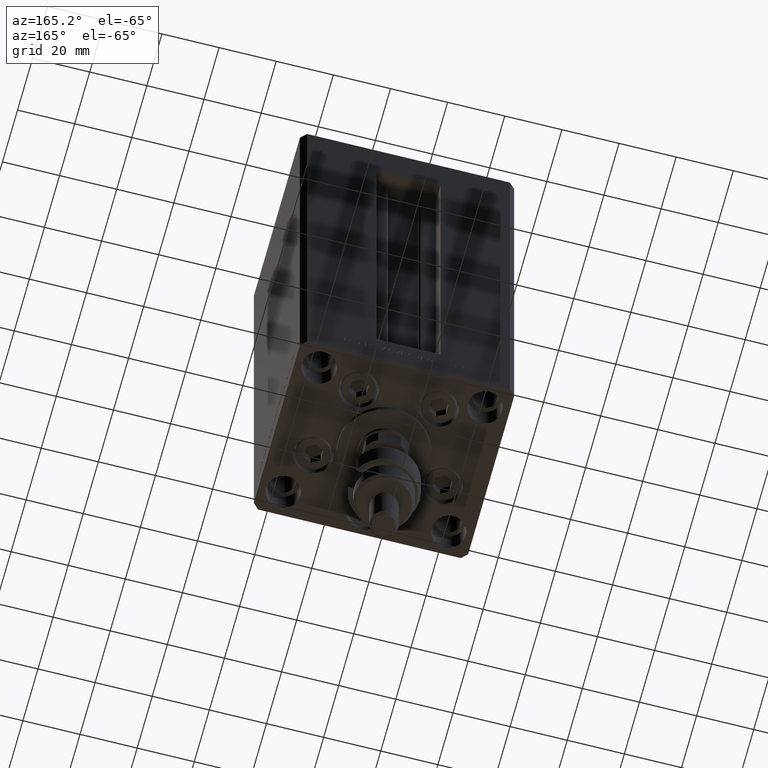
[diagram: clean part render]
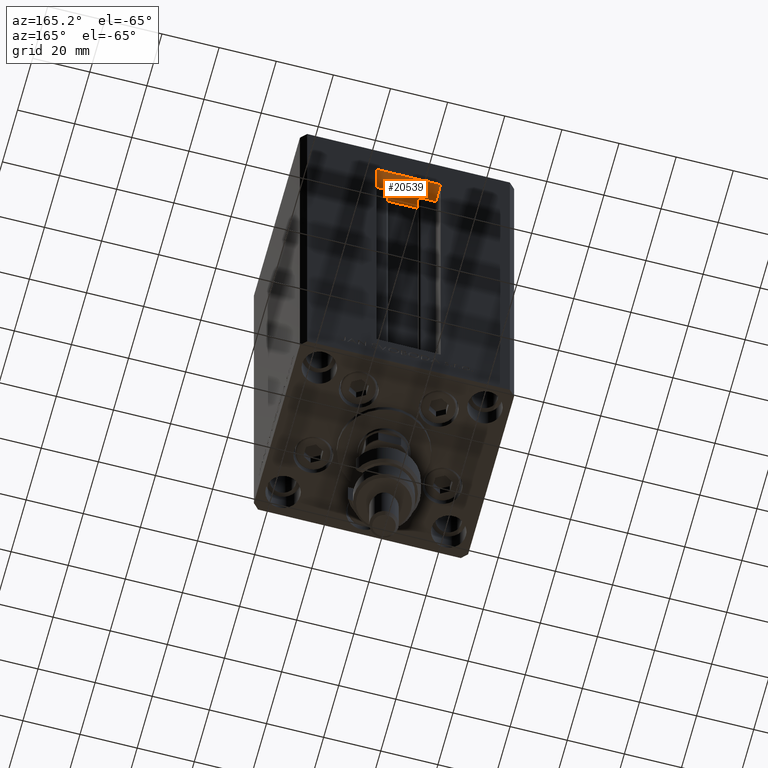
[diagram: same view with one face highlighted and labeled with its STEP entity id]
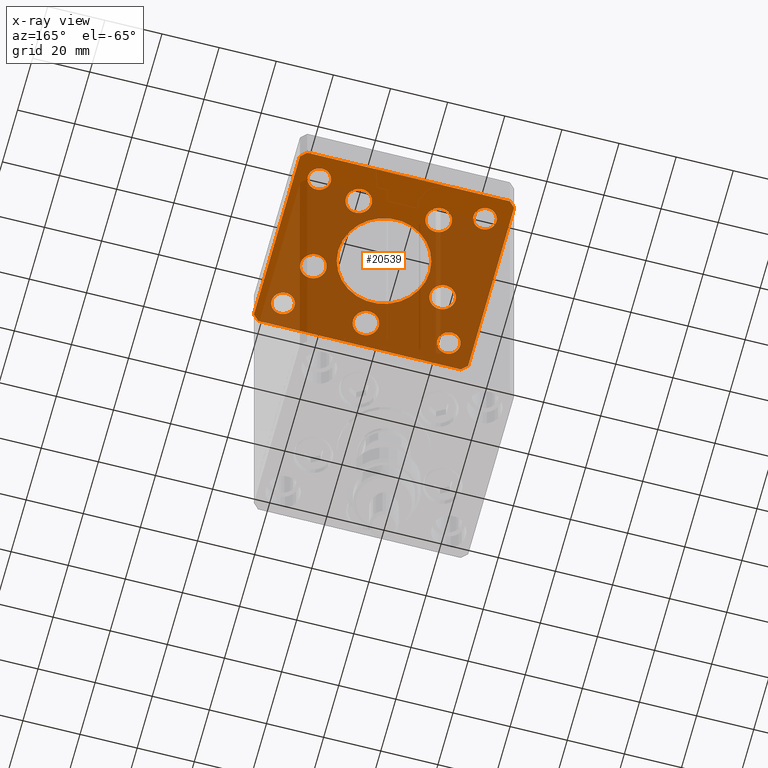
[diagram: x-ray of the same camera — body ghosted, the highlighted face saturated]
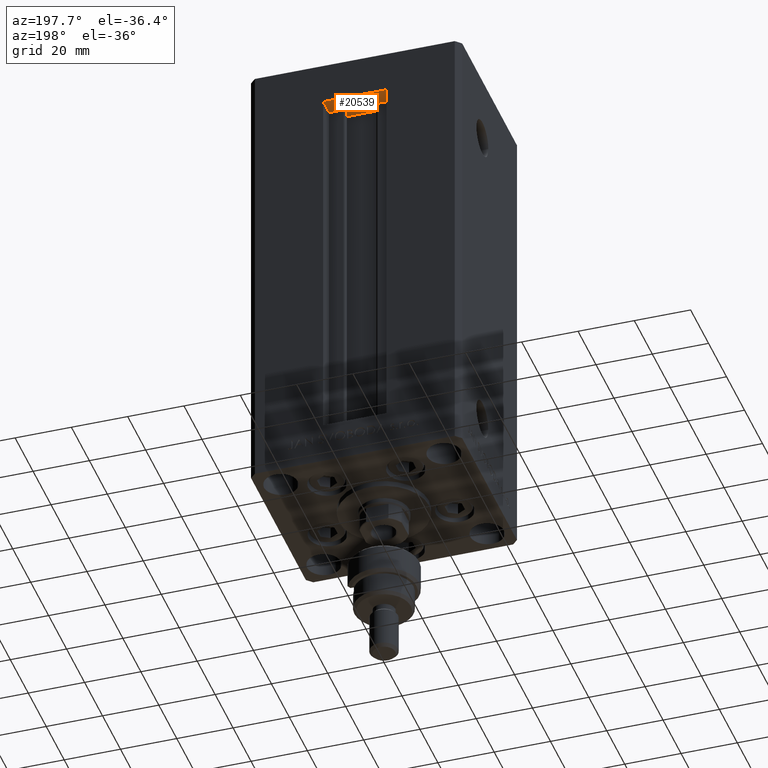
[diagram: same view with one face highlighted and labeled with its STEP entity id]
A machine part, auxiliary view. The second image highlights one B-rep face of the part: STEP entity #20539.
The next image is the same camera in x-ray: the body ghosted, the highlighted face saturated — about 75% of this face is hidden behind the body in this view.
A second angle (auxiliary view) of the same face is appended — the face is thin or edge-on in the first view.
In plain terms, the highlighted planar face has unit normal (0, 0, 1).
Its self-contained STEP definition (entity closure, byte-faithful):
#239 = EDGE_CURVE ( 'NONE', #32124, #35658, #41119, .T. ) ;
#413 = ORIENTED_EDGE ( 'NONE', *, *, #49595, .F. ) ;
#549 = VERTEX_POINT ( 'NONE', #11236 ) ;
#636 = EDGE_CURVE ( 'NONE', #27348, #44223, #35998, .T. ) ;
#1181 = DIRECTION ( 'NONE',  ( 0.000000000000000000, -0.000000000000000000, -1.000000000000000000 ) ) ;
#1193 = CARTESIAN_POINT ( 'NONE',  ( -29.00000000000001066, -23.99999999999999289, -15.00000000000000000 ) ) ;
#1346 = AXIS2_PLACEMENT_3D ( 'NONE', #16581, #32256, #29162 ) ;
#1719 = CIRCLE ( 'NONE', #13233, 4.500000000000005329 ) ;
#2108 = DIRECTION ( 'NONE',  ( 0.000000000000000000, -0.000000000000000000, -1.000000000000000000 ) ) ;
#2278 = CARTESIAN_POINT ( 'NONE',  ( -35.49999999999998579, -32.50000000000001421, -15.00000000000000000 ) ) ;
#2374 = VERTEX_POINT ( 'NONE', #20981 ) ;
#2466 = AXIS2_PLACEMENT_3D ( 'NONE', #42270, #46374, #26865 ) ;
#2703 = DIRECTION ( 'NONE',  ( 0.000000000000000000, -0.000000000000000000, -1.000000000000000000 ) ) ;
#2725 = VERTEX_POINT ( 'NONE', #4478 ) ;
#2871 = DIRECTION ( 'NONE',  ( -0.000000000000000000, 0.000000000000000000, 1.000000000000000000 ) ) ;
#3162 = VERTEX_POINT ( 'NONE', #3533 ) ;
#3432 = AXIS2_PLACEMENT_3D ( 'NONE', #33561, #13771, #9913 ) ;
#3533 = CARTESIAN_POINT ( 'NONE',  ( -33.00000000000000711, -23.99999999999999289, -15.00000000000000000 ) ) ;
#3539 = ORIENTED_EDGE ( 'NONE', *, *, #29998, .F. ) ;
#4306 = CARTESIAN_POINT ( 'NONE',  ( 16.00000000000000000, 0.000000000000000000, -15.00000000000000000 ) ) ;
#4478 = CARTESIAN_POINT ( 'NONE',  ( -18.49106857963322526, 19.49999999999999645, -15.00000000000000000 ) ) ;
#4487 = VECTOR ( 'NONE', #26949, 999.9999999999998863 ) ;
#4709 = VERTEX_POINT ( 'NONE', #49944 ) ;
#5706 = DIRECTION ( 'NONE',  ( 1.000000000000000000, 0.000000000000000000, 0.000000000000000000 ) ) ;
#5871 = AXIS2_PLACEMENT_3D ( 'NONE', #25638, #44891, #29480 ) ;
#5949 = CARTESIAN_POINT ( 'NONE',  ( -16.00000000000000000, 1.959434878635764737E-15, -15.00000000000000000 ) ) ;
#6100 = VECTOR ( 'NONE', #25543, 1000.000000000000000 ) ;
#6103 = CARTESIAN_POINT ( 'NONE',  ( 18.49106857963322881, 19.50000000000000000, -15.00000000000000000 ) ) ;
#6219 = VERTEX_POINT ( 'NONE', #33811 ) ;
#6577 = DIRECTION ( 'NONE',  ( 0.000000000000000000, -0.000000000000000000, -1.000000000000000000 ) ) ;
#6731 = FACE_BOUND ( 'NONE', #8968, .T. ) ;
#6745 = CIRCLE ( 'NONE', #29764, 4.499999999999997335 ) ;
#6864 = DIRECTION ( 'NONE',  ( 0.000000000000000000, -0.000000000000000000, -1.000000000000000000 ) ) ;
#7143 = LINE ( 'NONE', #12022, #4487 ) ;
#7540 = CARTESIAN_POINT ( 'NONE',  ( 25.00000000000000711, 24.00000000000000711, -15.00000000000000000 ) ) ;
#7629 = DIRECTION ( 'NONE',  ( -1.000000000000000000, 0.000000000000000000, 0.000000000000000000 ) ) ;
#7656 = CARTESIAN_POINT ( 'NONE',  ( 27.12741699796952233, -8.000000000000000000, -15.00000000000000000 ) ) ;
#8174 = CARTESIAN_POINT ( 'NONE',  ( 0.000000000000000000, 0.000000000000000000, -15.00000000000000000 ) ) ;
#8239 = CIRCLE ( 'NONE', #2466, 4.000000000000003553 ) ;
#8267 = ORIENTED_EDGE ( 'NONE', *, *, #22601, .F. ) ;
#8351 = CIRCLE ( 'NONE', #5871, 4.500000000000001776 ) ;
#8956 = AXIS2_PLACEMENT_3D ( 'NONE', #49527, #6864, #11233 ) ;
#8968 = EDGE_LOOP ( 'NONE', ( #24227, #49152 ) ) ;
#8971 = VERTEX_POINT ( 'NONE', #42929 ) ;
#9136 = DIRECTION ( 'NONE',  ( 1.000000000000000000, 0.000000000000000000, 0.000000000000000000 ) ) ;
#9172 = CIRCLE ( 'NONE', #15763, 4.500000000000005329 ) ;
#9582 = CARTESIAN_POINT ( 'NONE',  ( 35.50000000000000711, -32.50000000000000711, -15.00000000000000000 ) ) ;
#9807 = CIRCLE ( 'NONE', #50030, 3.999999999999996447 ) ;
#9812 = ORIENTED_EDGE ( 'NONE', *, *, #15396, .F. ) ;
#9816 = DIRECTION ( 'NONE',  ( -1.000000000000000000, -1.954618001100629052E-16, 0.000000000000000000 ) ) ;
#9833 = AXIS2_PLACEMENT_3D ( 'NONE', #12501, #48442, #9136 ) ;
#9913 = DIRECTION ( 'NONE',  ( -1.000000000000000000, 0.000000000000000000, 0.000000000000000000 ) ) ;
#10322 = ORIENTED_EDGE ( 'NONE', *, *, #19202, .T. ) ;
#10709 = CIRCLE ( 'NONE', #9833, 4.000000000000003553 ) ;
#11233 = DIRECTION ( 'NONE',  ( 1.000000000000000000, 0.000000000000000000, 0.000000000000000000 ) ) ;
#11236 = CARTESIAN_POINT ( 'NONE',  ( -9.491068579633228808, 19.49999999999999645, -15.00000000000000000 ) ) ;
#11287 = DIRECTION ( 'NONE',  ( 0.000000000000000000, -0.000000000000000000, -1.000000000000000000 ) ) ;
#11294 = EDGE_CURVE ( 'NONE', #12788, #37465, #9172, .T. ) ;
#11532 = FACE_BOUND ( 'NONE', #43411, .T. ) ;
#11558 = EDGE_LOOP ( 'NONE', ( #17190, #46262 ) ) ;
#11830 = ORIENTED_EDGE ( 'NONE', *, *, #12151, .F. ) ;
#12022 = CARTESIAN_POINT ( 'NONE',  ( 37.49999999999992184, 30.50000000000001066, -15.00000000000000000 ) ) ;
#12039 = FACE_BOUND ( 'NONE', #26989, .T. ) ;
#12151 = EDGE_CURVE ( 'NONE', #2374, #32124, #44531, .T. ) ;
#12420 = CARTESIAN_POINT ( 'NONE',  ( -22.62741699796951877, -8.000000000000005329, -15.00000000000000000 ) ) ;
#12470 = CIRCLE ( 'NONE', #32965, 4.000000000000000000 ) ;
#12501 = CARTESIAN_POINT ( 'NONE',  ( 29.00000000000001066, 24.00000000000000711, -15.00000000000000000 ) ) ;
#12600 = ORIENTED_EDGE ( 'NONE', *, *, #11294, .F. ) ;
#12788 = VERTEX_POINT ( 'NONE', #6103 ) ;
#13233 = AXIS2_PLACEMENT_3D ( 'NONE', #47207, #1181, #39506 ) ;
#13290 = DIRECTION ( 'NONE',  ( -0.000000000000000000, -0.000000000000000000, -1.000000000000000000 ) ) ;
#13319 = EDGE_CURVE ( 'NONE', #39549, #50448, #15124, .T. ) ;
#13343 = EDGE_LOOP ( 'NONE', ( #19062, #10322 ) ) ;
#13580 = AXIS2_PLACEMENT_3D ( 'NONE', #22667, #34474, #42933 ) ;
#13771 = DIRECTION ( 'NONE',  ( -0.000000000000000000, -0.000000000000000000, -1.000000000000000000 ) ) ;
#13919 = EDGE_CURVE ( 'NONE', #37545, #3162, #9807, .T. ) ;
#14022 = CARTESIAN_POINT ( 'NONE',  ( 0.000000000000000000, 0.000000000000000000, -15.00000000000000000 ) ) ;
#14448 = FACE_BOUND ( 'NONE', #22689, .T. ) ;
#14700 = FACE_BOUND ( 'NONE', #41709, .T. ) ;
#14862 = VECTOR ( 'NONE', #27167, 1000.000000000000000 ) ;
#14903 = CARTESIAN_POINT ( 'NONE',  ( -37.49999999999998579, -30.50000000000001421, -15.00000000000000000 ) ) ;
#15124 = CIRCLE ( 'NONE', #21680, 4.500000000000001776 ) ;
#15130 = ORIENTED_EDGE ( 'NONE', *, *, #38378, .F. ) ;
#15396 = EDGE_CURVE ( 'NONE', #32939, #4709, #36734, .T. ) ;
#15566 = DIRECTION ( 'NONE',  ( 0.000000000000000000, 0.000000000000000000, 1.000000000000000000 ) ) ;
#15763 = AXIS2_PLACEMENT_3D ( 'NONE', #37836, #37572, #18047 ) ;
#15913 = EDGE_CURVE ( 'NONE', #35658, #16513, #23059, .T. ) ;
#15973 = EDGE_LOOP ( 'NONE', ( #12600, #413 ) ) ;
#16322 = CARTESIAN_POINT ( 'NONE',  ( -25.00000000000001066, -23.99999999999999289, -15.00000000000000000 ) ) ;
#16513 = VERTEX_POINT ( 'NONE', #14903 ) ;
#16581 = CARTESIAN_POINT ( 'NONE',  ( 22.62741699796951877, -8.000000000000000000, -15.00000000000000000 ) ) ;
#16619 = EDGE_LOOP ( 'NONE', ( #31928, #15130 ) ) ;
#17190 = ORIENTED_EDGE ( 'NONE', *, *, #47456, .T. ) ;
#17842 = CARTESIAN_POINT ( 'NONE',  ( 37.50000000000001421, -30.50000000000000711, -15.00000000000000000 ) ) ;
#17985 = CARTESIAN_POINT ( 'NONE',  ( -35.50000000000002842, 32.49999999999999289, -15.00000000000000000 ) ) ;
#18047 = DIRECTION ( 'NONE',  ( 1.000000000000000000, 0.000000000000000000, 0.000000000000000000 ) ) ;
#18501 = CARTESIAN_POINT ( 'NONE',  ( -13.99106857963322703, 19.49999999999999645, -15.00000000000000000 ) ) ;
#18839 = ORIENTED_EDGE ( 'NONE', *, *, #36266, .F. ) ;
#19062 = ORIENTED_EDGE ( 'NONE', *, *, #24132, .T. ) ;
#19130 = CARTESIAN_POINT ( 'NONE',  ( 25.00000000000000711, -23.99999999999999289, -15.00000000000000000 ) ) ;
#19202 = EDGE_CURVE ( 'NONE', #44111, #49252, #12470, .T. ) ;
#19360 = ORIENTED_EDGE ( 'NONE', *, *, #15913, .F. ) ;
#19503 = ORIENTED_EDGE ( 'NONE', *, *, #20421, .F. ) ;
#19621 = EDGE_CURVE ( 'NONE', #38721, #41611, #24003, .T. ) ;
#19678 = ORIENTED_EDGE ( 'NONE', *, *, #239, .F. ) ;
#19762 = FACE_BOUND ( 'NONE', #16619, .T. ) ;
#20421 = EDGE_CURVE ( 'NONE', #39394, #28072, #6745, .T. ) ;
#20539 = ADVANCED_FACE ( 'NONE', ( #23372, #14448, #11532, #14700, #47238, #6731, #30390, #27982, #43646, #12039, #19762 ), #39533, .F. ) ;
#20820 = VERTEX_POINT ( 'NONE', #43328 ) ;
#20981 = CARTESIAN_POINT ( 'NONE',  ( 35.49999999999992184, 32.50000000000000711, -15.00000000000000000 ) ) ;
#21085 = EDGE_LOOP ( 'NONE', ( #35661, #19360, #19678, #11830, #21816, #18839, #46162, #9812 ) ) ;
#21164 = LINE ( 'NONE', #9582, #6100 ) ;
#21254 = VECTOR ( 'NONE', #37519, 1000.000000000000000 ) ;
#21376 = CARTESIAN_POINT ( 'NONE',  ( -37.49999999999998579, -30.50000000000001421, -15.00000000000000000 ) ) ;
#21680 = AXIS2_PLACEMENT_3D ( 'NONE', #22114, #26744, #33944 ) ;
#21816 = ORIENTED_EDGE ( 'NONE', *, *, #30017, .F. ) ;
#21868 = CARTESIAN_POINT ( 'NONE',  ( -29.00000000000001066, 24.00000000000000711, -15.00000000000000000 ) ) ;
#21890 = AXIS2_PLACEMENT_3D ( 'NONE', #1193, #13290, #43880 ) ;
#22082 = VERTEX_POINT ( 'NONE', #28125 ) ;
#22114 = CARTESIAN_POINT ( 'NONE',  ( 2.939152317953647500E-15, -24.00000000000000000, -15.00000000000000000 ) ) ;
#22601 = EDGE_CURVE ( 'NONE', #50448, #39549, #8351, .T. ) ;
#22667 = CARTESIAN_POINT ( 'NONE',  ( 29.00000000000001066, -23.99999999999999289, -15.00000000000000000 ) ) ;
#22689 = EDGE_LOOP ( 'NONE', ( #19503, #3539 ) ) ;
#22791 = CARTESIAN_POINT ( 'NONE',  ( -13.99106857963322703, 19.49999999999999645, -15.00000000000000000 ) ) ;
#23043 = DIRECTION ( 'NONE',  ( 1.000000000000000000, 0.000000000000000000, 0.000000000000000000 ) ) ;
#23059 = LINE ( 'NONE', #26669, #14862 ) ;
#23198 = EDGE_CURVE ( 'NONE', #6219, #33425, #49401, .T. ) ;
#23372 = FACE_BOUND ( 'NONE', #34548, .T. ) ;
#24003 = CIRCLE ( 'NONE', #33005, 16.00000000000000000 ) ;
#24132 = EDGE_CURVE ( 'NONE', #49252, #44111, #34675, .T. ) ;
#24206 = VECTOR ( 'NONE', #26521, 1000.000000000000114 ) ;
#24227 = ORIENTED_EDGE ( 'NONE', *, *, #44120, .F. ) ;
#24349 = ORIENTED_EDGE ( 'NONE', *, *, #13319, .F. ) ;
#25060 = LINE ( 'NONE', #17842, #43148 ) ;
#25235 = LINE ( 'NONE', #21376, #24206 ) ;
#25543 = DIRECTION ( 'NONE',  ( 0.7071067811865487940, 0.7071067811865463515, 0.000000000000000000 ) ) ;
#25638 = CARTESIAN_POINT ( 'NONE',  ( 2.939152317953647500E-15, -24.00000000000000000, -15.00000000000000000 ) ) ;
#25654 = CARTESIAN_POINT ( 'NONE',  ( 18.12741699796951877, -8.000000000000000000, -15.00000000000000000 ) ) ;
#26131 = CARTESIAN_POINT ( 'NONE',  ( -29.00000000000001066, 24.00000000000000711, -15.00000000000000000 ) ) ;
#26521 = DIRECTION ( 'NONE',  ( 0.7071067811865474617, -0.7071067811865474617, 0.000000000000000000 ) ) ;
#26669 = CARTESIAN_POINT ( 'NONE',  ( -37.50000000000001421, 30.49999999999998579, -15.00000000000000000 ) ) ;
#26744 = DIRECTION ( 'NONE',  ( 0.000000000000000000, -0.000000000000000000, -1.000000000000000000 ) ) ;
#26865 = DIRECTION ( 'NONE',  ( 1.000000000000000000, 0.000000000000000000, 0.000000000000000000 ) ) ;
#26949 = DIRECTION ( 'NONE',  ( -0.7071067811865482389, 0.7071067811865469066, 0.000000000000000000 ) ) ;
#26989 = EDGE_LOOP ( 'NONE', ( #38691, #47111 ) ) ;
#27167 = DIRECTION ( 'NONE',  ( 4.550094363217855288E-16, -1.000000000000000000, 0.000000000000000000 ) ) ;
#27189 = CARTESIAN_POINT ( 'NONE',  ( -29.00000000000001066, -23.99999999999999289, -15.00000000000000000 ) ) ;
#27348 = VERTEX_POINT ( 'NONE', #7656 ) ;
#27982 = FACE_BOUND ( 'NONE', #13343, .T. ) ;
#28072 = VERTEX_POINT ( 'NONE', #43799 ) ;
#28125 = CARTESIAN_POINT ( 'NONE',  ( 37.50000000000001421, -30.50000000000000711, -15.00000000000000000 ) ) ;
#28232 = EDGE_CURVE ( 'NONE', #4709, #22082, #21164, .T. ) ;
#28310 = CIRCLE ( 'NONE', #40590, 4.499999999999997335 ) ;
#28556 = CARTESIAN_POINT ( 'NONE',  ( -18.12741699796952233, -8.000000000000005329, -15.00000000000000000 ) ) ;
#29162 = DIRECTION ( 'NONE',  ( 1.000000000000000000, 0.000000000000000000, 0.000000000000000000 ) ) ;
#29480 = DIRECTION ( 'NONE',  ( 1.000000000000000000, 0.000000000000000000, 0.000000000000000000 ) ) ;
#29555 = EDGE_CURVE ( 'NONE', #16513, #32939, #25235, .T. ) ;
#29764 = AXIS2_PLACEMENT_3D ( 'NONE', #12420, #39909, #40153 ) ;
#29819 = CARTESIAN_POINT ( 'NONE',  ( -35.49999999999998579, -32.50000000000001421, -15.00000000000000000 ) ) ;
#29998 = EDGE_CURVE ( 'NONE', #28072, #39394, #28310, .T. ) ;
#30017 = EDGE_CURVE ( 'NONE', #20820, #2374, #7143, .T. ) ;
#30390 = FACE_BOUND ( 'NONE', #11558, .T. ) ;
#30424 = VECTOR ( 'NONE', #49577, 1000.000000000000000 ) ;
#30504 = DIRECTION ( 'NONE',  ( 1.000000000000000000, 0.000000000000000000, 0.000000000000000000 ) ) ;
#30594 = VECTOR ( 'NONE', #9816, 1000.000000000000000 ) ;
#30817 = DIRECTION ( 'NONE',  ( 1.000000000000000000, 0.000000000000000000, 0.000000000000000000 ) ) ;
#30854 = CIRCLE ( 'NONE', #13580, 4.000000000000003553 ) ;
#31409 = AXIS2_PLACEMENT_3D ( 'NONE', #26131, #15566, #23043 ) ;
#31839 = EDGE_CURVE ( 'NONE', #33425, #6219, #30854, .T. ) ;
#31928 = ORIENTED_EDGE ( 'NONE', *, *, #13919, .F. ) ;
#32124 = VERTEX_POINT ( 'NONE', #33138 ) ;
#32256 = DIRECTION ( 'NONE',  ( 0.000000000000000000, -0.000000000000000000, -1.000000000000000000 ) ) ;
#32738 = AXIS2_PLACEMENT_3D ( 'NONE', #18501, #11287, #42140 ) ;
#32939 = VERTEX_POINT ( 'NONE', #2278 ) ;
#32965 = AXIS2_PLACEMENT_3D ( 'NONE', #21868, #38300, #34706 ) ;
#33005 = AXIS2_PLACEMENT_3D ( 'NONE', #14022, #2703, #48958 ) ;
#33138 = CARTESIAN_POINT ( 'NONE',  ( -35.50000000000002842, 32.49999999999999289, -15.00000000000000000 ) ) ;
#33425 = VERTEX_POINT ( 'NONE', #19130 ) ;
#33561 = CARTESIAN_POINT ( 'NONE',  ( 29.00000000000001066, -23.99999999999999289, -15.00000000000000000 ) ) ;
#33811 = CARTESIAN_POINT ( 'NONE',  ( 33.00000000000001421, -23.99999999999999289, -15.00000000000000000 ) ) ;
#33944 = DIRECTION ( 'NONE',  ( 1.000000000000000000, 0.000000000000000000, 0.000000000000000000 ) ) ;
#34402 = VERTEX_POINT ( 'NONE', #7540 ) ;
#34474 = DIRECTION ( 'NONE',  ( -0.000000000000000000, -0.000000000000000000, -1.000000000000000000 ) ) ;
#34548 = EDGE_LOOP ( 'NONE', ( #39763, #44313 ) ) ;
#34675 = CIRCLE ( 'NONE', #31409, 4.000000000000000000 ) ;
#34706 = DIRECTION ( 'NONE',  ( 1.000000000000000000, 0.000000000000000000, 0.000000000000000000 ) ) ;
#35192 = CIRCLE ( 'NONE', #32738, 4.499999999999999112 ) ;
#35658 = VERTEX_POINT ( 'NONE', #43452 ) ;
#35661 = ORIENTED_EDGE ( 'NONE', *, *, #29555, .F. ) ;
#35998 = CIRCLE ( 'NONE', #50784, 4.500000000000000888 ) ;
#36266 = EDGE_CURVE ( 'NONE', #22082, #20820, #25060, .T. ) ;
#36734 = LINE ( 'NONE', #29819, #30424 ) ;
#37465 = VERTEX_POINT ( 'NONE', #42049 ) ;
#37519 = DIRECTION ( 'NONE',  ( -0.7071067811865426878, -0.7071067811865524577, 0.000000000000000000 ) ) ;
#37545 = VERTEX_POINT ( 'NONE', #16322 ) ;
#37572 = DIRECTION ( 'NONE',  ( 0.000000000000000000, -0.000000000000000000, -1.000000000000000000 ) ) ;
#37619 = EDGE_CURVE ( 'NONE', #44223, #27348, #38320, .T. ) ;
#37790 = ORIENTED_EDGE ( 'NONE', *, *, #636, .F. ) ;
#37799 = CARTESIAN_POINT ( 'NONE',  ( -25.00000000000001066, 24.00000000000000711, -15.00000000000000000 ) ) ;
#37836 = CARTESIAN_POINT ( 'NONE',  ( 13.99106857963322348, 19.50000000000000000, -15.00000000000000000 ) ) ;
#38300 = DIRECTION ( 'NONE',  ( 0.000000000000000000, 0.000000000000000000, 1.000000000000000000 ) ) ;
#38320 = CIRCLE ( 'NONE', #1346, 4.500000000000000888 ) ;
#38378 = EDGE_CURVE ( 'NONE', #3162, #37545, #44025, .T. ) ;
#38691 = ORIENTED_EDGE ( 'NONE', *, *, #23198, .F. ) ;
#38721 = VERTEX_POINT ( 'NONE', #5949 ) ;
#38778 = AXIS2_PLACEMENT_3D ( 'NONE', #8174, #2871, #42888 ) ;
#39346 = CIRCLE ( 'NONE', #8956, 16.00000000000000000 ) ;
#39394 = VERTEX_POINT ( 'NONE', #28556 ) ;
#39491 = AXIS2_PLACEMENT_3D ( 'NONE', #22791, #6577, #30504 ) ;
#39506 = DIRECTION ( 'NONE',  ( 1.000000000000000000, 0.000000000000000000, 0.000000000000000000 ) ) ;
#39533 = PLANE ( 'NONE',  #38778 ) ;
#39549 = VERTEX_POINT ( 'NONE', #49602 ) ;
#39763 = ORIENTED_EDGE ( 'NONE', *, *, #46057, .F. ) ;
#39909 = DIRECTION ( 'NONE',  ( 0.000000000000000000, -0.000000000000000000, -1.000000000000000000 ) ) ;
#40153 = DIRECTION ( 'NONE',  ( 1.000000000000000000, 0.000000000000000000, 0.000000000000000000 ) ) ;
#40590 = AXIS2_PLACEMENT_3D ( 'NONE', #43367, #43116, #30817 ) ;
#41119 = LINE ( 'NONE', #17985, #21254 ) ;
#41611 = VERTEX_POINT ( 'NONE', #4306 ) ;
#41709 = EDGE_LOOP ( 'NONE', ( #37790, #49682 ) ) ;
#42049 = CARTESIAN_POINT ( 'NONE',  ( 9.491068579633218150, 19.50000000000000000, -15.00000000000000000 ) ) ;
#42140 = DIRECTION ( 'NONE',  ( 1.000000000000000000, 0.000000000000000000, 0.000000000000000000 ) ) ;
#42270 = CARTESIAN_POINT ( 'NONE',  ( 29.00000000000001066, 24.00000000000000711, -15.00000000000000000 ) ) ;
#42761 = CIRCLE ( 'NONE', #39491, 4.499999999999999112 ) ;
#42844 = DIRECTION ( 'NONE',  ( -0.000000000000000000, -0.000000000000000000, -1.000000000000000000 ) ) ;
#42888 = DIRECTION ( 'NONE',  ( 1.000000000000000000, 0.000000000000000000, 0.000000000000000000 ) ) ;
#42929 = CARTESIAN_POINT ( 'NONE',  ( 33.00000000000001421, 24.00000000000000711, -15.00000000000000000 ) ) ;
#42933 = DIRECTION ( 'NONE',  ( -1.000000000000000000, 0.000000000000000000, 0.000000000000000000 ) ) ;
#43116 = DIRECTION ( 'NONE',  ( 0.000000000000000000, -0.000000000000000000, -1.000000000000000000 ) ) ;
#43148 = VECTOR ( 'NONE', #49179, 1000.000000000000000 ) ;
#43328 = CARTESIAN_POINT ( 'NONE',  ( 37.49999999999992184, 30.50000000000001066, -15.00000000000000000 ) ) ;
#43367 = CARTESIAN_POINT ( 'NONE',  ( -22.62741699796951877, -8.000000000000005329, -15.00000000000000000 ) ) ;
#43411 = EDGE_LOOP ( 'NONE', ( #8267, #24349 ) ) ;
#43452 = CARTESIAN_POINT ( 'NONE',  ( -37.50000000000001421, 30.49999999999998579, -15.00000000000000000 ) ) ;
#43646 = FACE_OUTER_BOUND ( 'NONE', #21085, .T. ) ;
#43799 = CARTESIAN_POINT ( 'NONE',  ( -27.12741699796951877, -8.000000000000005329, -15.00000000000000000 ) ) ;
#43880 = DIRECTION ( 'NONE',  ( -1.000000000000000000, 0.000000000000000000, 0.000000000000000000 ) ) ;
#44025 = CIRCLE ( 'NONE', #21890, 3.999999999999996447 ) ;
#44111 = VERTEX_POINT ( 'NONE', #50594 ) ;
#44120 = EDGE_CURVE ( 'NONE', #549, #2725, #35192, .T. ) ;
#44223 = VERTEX_POINT ( 'NONE', #25654 ) ;
#44313 = ORIENTED_EDGE ( 'NONE', *, *, #19621, .F. ) ;
#44531 = LINE ( 'NONE', #48883, #30594 ) ;
#44891 = DIRECTION ( 'NONE',  ( 0.000000000000000000, -0.000000000000000000, -1.000000000000000000 ) ) ;
#46057 = EDGE_CURVE ( 'NONE', #41611, #38721, #39346, .T. ) ;
#46162 = ORIENTED_EDGE ( 'NONE', *, *, #28232, .F. ) ;
#46262 = ORIENTED_EDGE ( 'NONE', *, *, #47828, .T. ) ;
#46374 = DIRECTION ( 'NONE',  ( 0.000000000000000000, 0.000000000000000000, 1.000000000000000000 ) ) ;
#46630 = CARTESIAN_POINT ( 'NONE',  ( 4.500000000000003553, -24.00000000000000000, -15.00000000000000000 ) ) ;
#47111 = ORIENTED_EDGE ( 'NONE', *, *, #31839, .F. ) ;
#47207 = CARTESIAN_POINT ( 'NONE',  ( 13.99106857963322348, 19.50000000000000000, -15.00000000000000000 ) ) ;
#47238 = FACE_BOUND ( 'NONE', #15973, .T. ) ;
#47456 = EDGE_CURVE ( 'NONE', #8971, #34402, #8239, .T. ) ;
#47828 = EDGE_CURVE ( 'NONE', #34402, #8971, #10709, .T. ) ;
#48442 = DIRECTION ( 'NONE',  ( 0.000000000000000000, 0.000000000000000000, 1.000000000000000000 ) ) ;
#48883 = CARTESIAN_POINT ( 'NONE',  ( 35.49999999999992184, 32.50000000000000711, -15.00000000000000000 ) ) ;
#48958 = DIRECTION ( 'NONE',  ( 1.000000000000000000, 0.000000000000000000, 0.000000000000000000 ) ) ;
#49144 = CARTESIAN_POINT ( 'NONE',  ( 22.62741699796951877, -8.000000000000000000, -15.00000000000000000 ) ) ;
#49152 = ORIENTED_EDGE ( 'NONE', *, *, #49782, .F. ) ;
#49179 = DIRECTION ( 'NONE',  ( -1.478780668045802821E-15, 1.000000000000000000, 0.000000000000000000 ) ) ;
#49252 = VERTEX_POINT ( 'NONE', #37799 ) ;
#49401 = CIRCLE ( 'NONE', #3432, 4.000000000000003553 ) ;
#49527 = CARTESIAN_POINT ( 'NONE',  ( 0.000000000000000000, 0.000000000000000000, -15.00000000000000000 ) ) ;
#49577 = DIRECTION ( 'NONE',  ( 1.000000000000000000, 9.773090005503140331E-17, 0.000000000000000000 ) ) ;
#49595 = EDGE_CURVE ( 'NONE', #37465, #12788, #1719, .T. ) ;
#49602 = CARTESIAN_POINT ( 'NONE',  ( -4.499999999999999112, -24.00000000000000000, -15.00000000000000000 ) ) ;
#49682 = ORIENTED_EDGE ( 'NONE', *, *, #37619, .F. ) ;
#49782 = EDGE_CURVE ( 'NONE', #2725, #549, #42761, .T. ) ;
#49944 = CARTESIAN_POINT ( 'NONE',  ( 35.50000000000000711, -32.50000000000000711, -15.00000000000000000 ) ) ;
#50030 = AXIS2_PLACEMENT_3D ( 'NONE', #27189, #42844, #7629 ) ;
#50448 = VERTEX_POINT ( 'NONE', #46630 ) ;
#50594 = CARTESIAN_POINT ( 'NONE',  ( -33.00000000000000711, 24.00000000000000711, -15.00000000000000000 ) ) ;
#50784 = AXIS2_PLACEMENT_3D ( 'NONE', #49144, #2108, #5706 ) ;